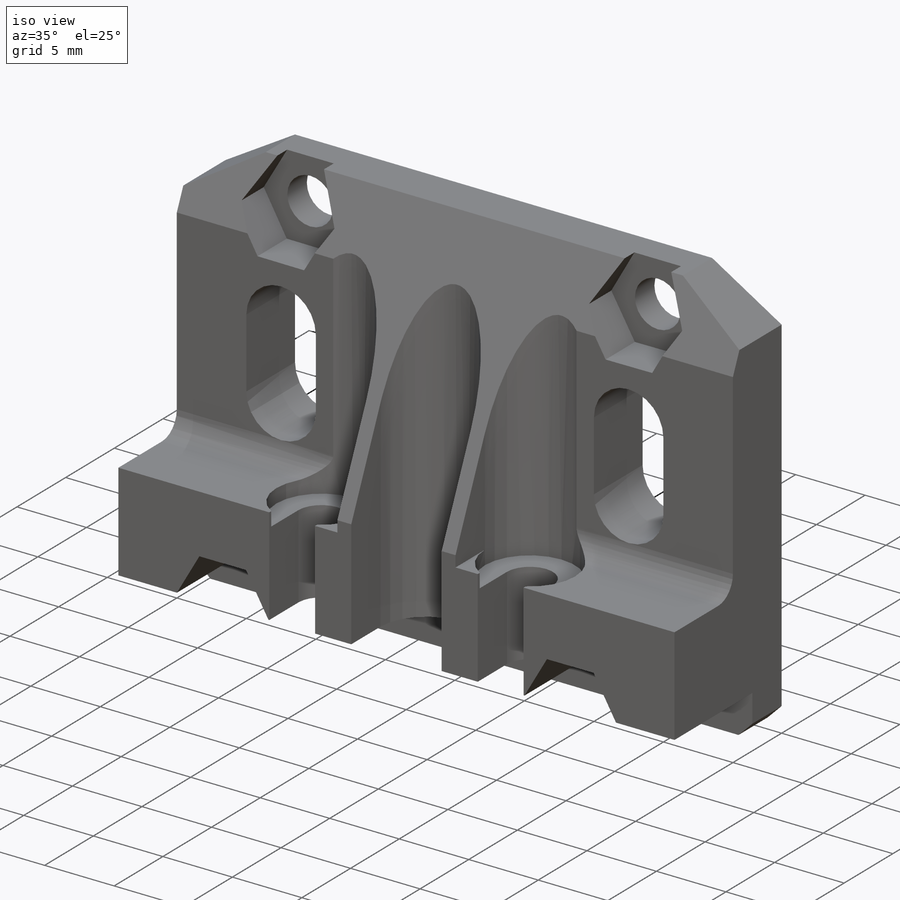
[diagram: iso view]
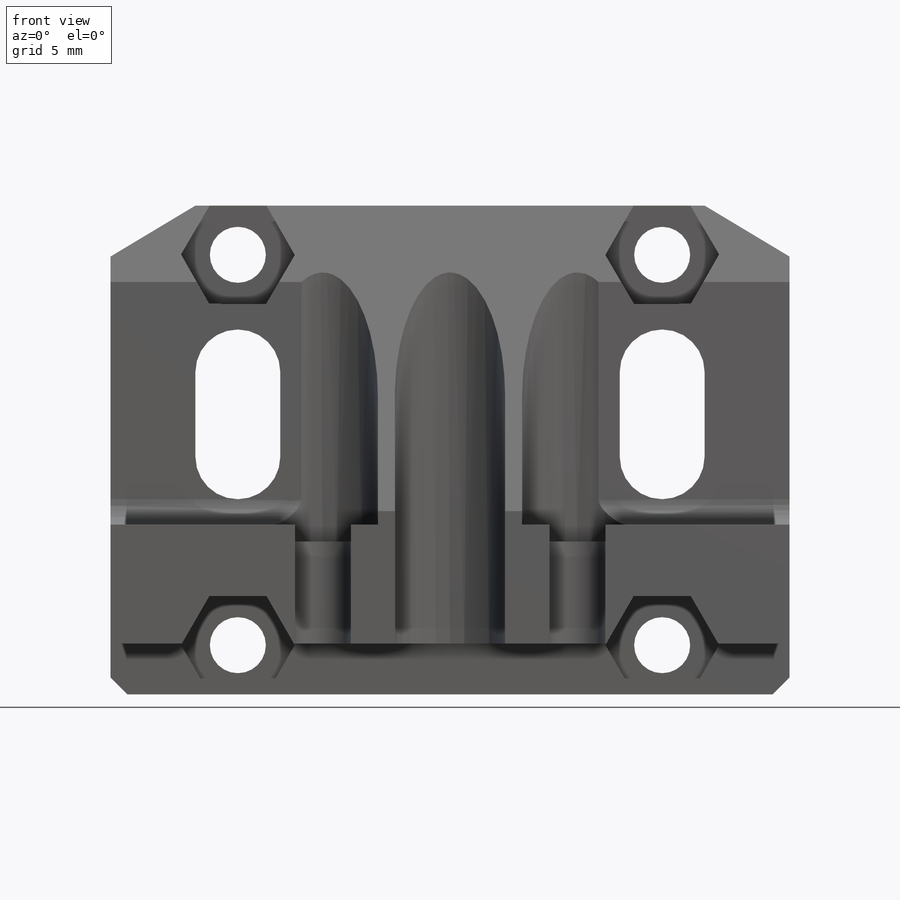
[diagram: front view]
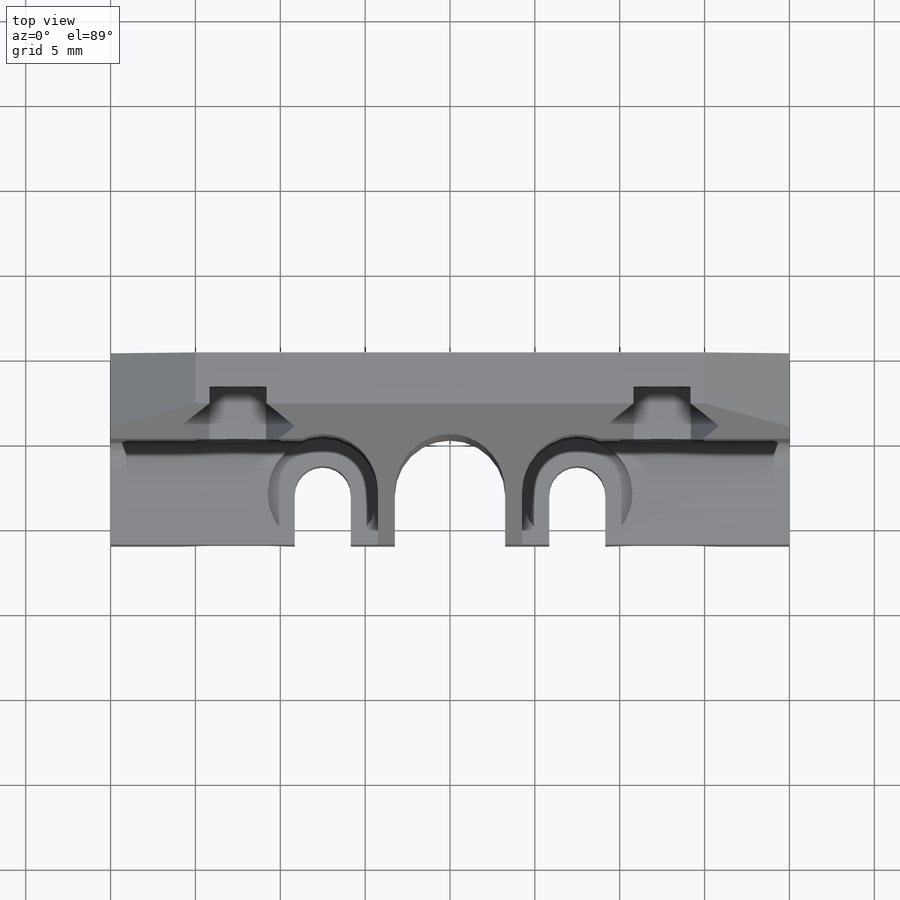
[diagram: top view]
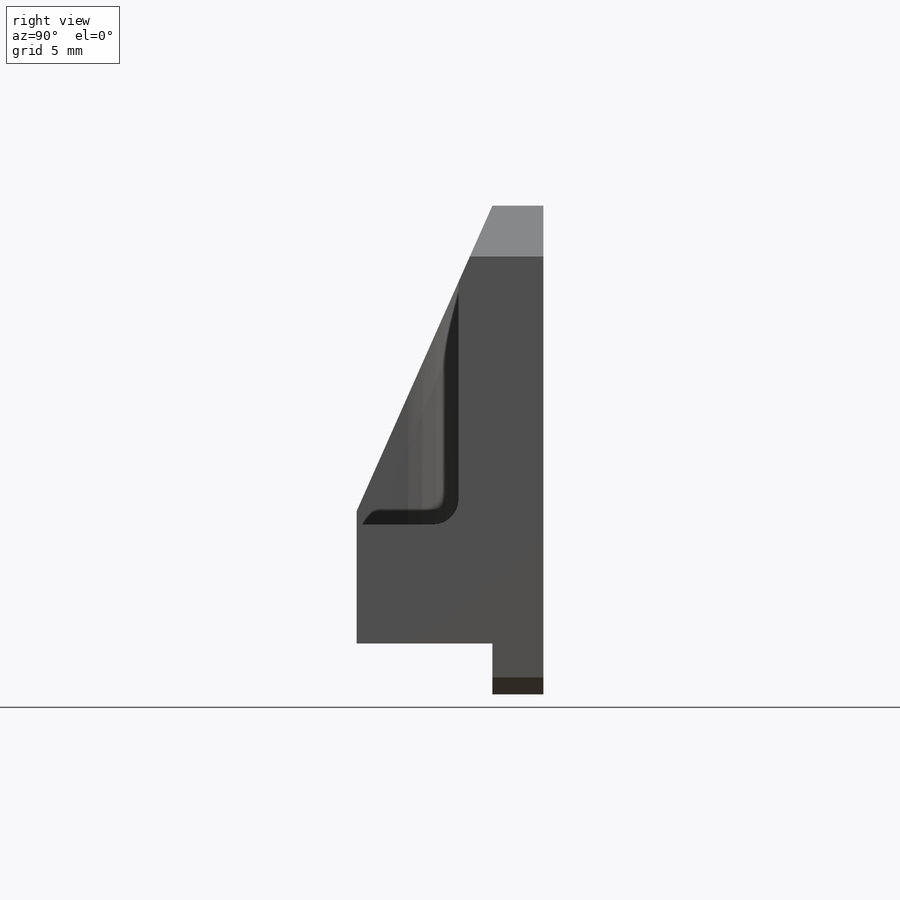
[diagram: right view]
SOLIDWORKS PART (.sldprt)
format: sldprt  version: not decoded by parser v0  size: 534,528 bytes
history: native  units: mm
features: sketch x14, cut_extrude x13, chamfer x9, material x1, extrude x1, fillet x1, mirror x1 (+16 scaffold rows collapsed)
feature tree (56):
  scaffold x16  (default folders/planes/origin — collapsed)
  material  "Material <not specified>"
  sketch  "Sketch1"  dims[D1=20.0mm D2=40.0mm D3=28.8mm]
  extrude  "Boss-Extrude1"  Depth=11mm
  chamfer  "Chamfer2"  Distance=8mm
  sketch  "Sketch10"  dims[D1=10.0mm D2=6.5mm]
  cut_extrude  "Cut-Extrude7"  Depth=5mm
  fillet  "Fillet1"  Radius=1.5mm
  sketch  "Sketch11"  dims[D1=3.0mm]
  cut_extrude  "Cut-Extrude8"  Depth=8mm
  chamfer  "Chamfer3"  Distance=4mm
  sketch  "Sketch12"  dims[D1=3.25mm D2=8.0mm D3=7.5mm]
  cut_extrude  "Cut-Extrude9"  [1 undecoded]
  sketch  "Sketch13"  dims[D1=3.3mm]
  cut_extrude  "Cut-Extrude10"  [1 undecoded]
  sketch  "Sketch3"  dims[c1.D1=5.0mm c1.D2=6.5mm c2.D1=8.0mm]
  cut_extrude  "Cut-Extrude2"  Depth=30mm
  sketch  "Sketch4"  dims[c1.D2=4.0mm c1.D1=8.0mm c2.D2=6.0mm c2.D3=9.0mm c2.D4=7.5mm]
  cut_extrude  "Cut-Extrude3"  [1 undecoded]
  sketch  "Sketch2"  dims[D5=3.3mm D1=25.0mm D2=23.0mm D3=2.9mm D4=12.5mm]
  cut_extrude  "Cut-Extrude1"  [1 undecoded]
  sketch  "Sketch5"  dims[D1=5.8mm]
  cut_extrude  "Cut-Extrude4"  Depth=2mm
  sketch  "Sketch6"  dims[c1.D2=5.8mm c1.D3=3.4mm c1.D1=8.0mm c2.D3=5.5mm]
  cut_extrude  "Cut-Extrude5"  Depth=5mm
  sketch  "Sketch7"  dims[D1=3.3mm D2=8.0mm D3=3.0mm D4=1.5mm]
  cut_extrude  "Cut-Extrude6"  [1 undecoded]
  sketch  "Sketch15"
  cut_extrude  "Cut-Extrude12"  Depth=1mm
  sketch  "Sketch16"  dims[D1=2.5mm D2=14.0mm D3=19.0mm]
  cut_extrude  "Cut-Extrude13"  [1 undecoded]
  mirror  "Mirror1"
  chamfer  "Chamfer4"  Distance=3mm
  chamfer  "Chamfer5"  Distance=5mm
  chamfer  "Chamfer6"  Distance=7mm
  chamfer  "Chamfer7"  Distance=4mm
  sketch  "Sketch14"  dims[D1=5.8mm]
  cut_extrude  "Cut-Extrude11"  Depth=1.6mm
  chamfer  "Chamfer8"  Distance=1mm Angle=45deg
  chamfer  "Chamfer9"  Distance=0.5mm Angle=45deg
  chamfer  "Chamfer10"  Distance=4mm Angle=25deg
decode coverage: 31 of 39 modeling features carry decoded parameters
note: 6 parameter values undecoded
summary: no parameter record found for 6 features
note: suppression state not decoded; provenance and decode notes live in map.json
